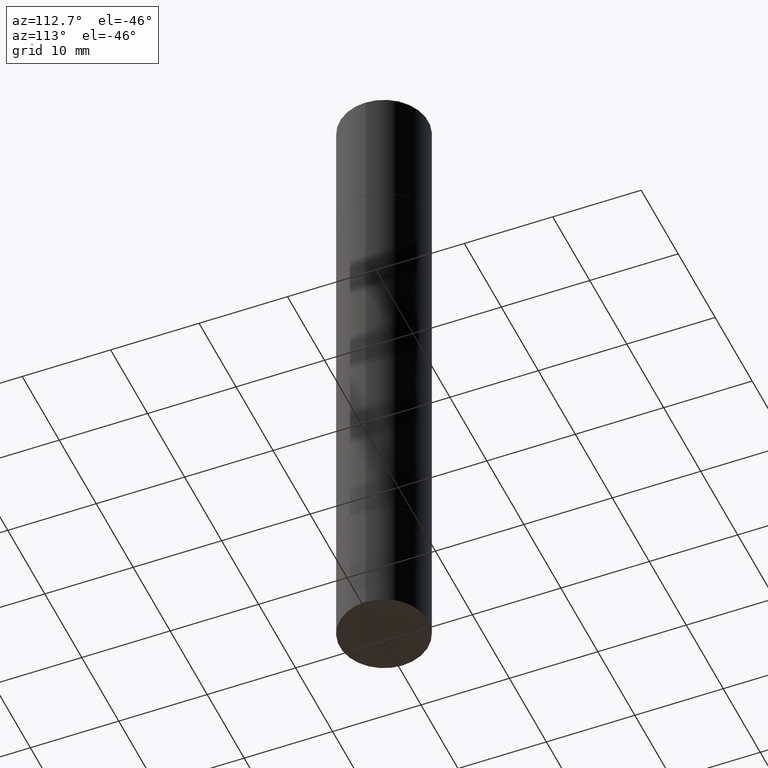
[diagram: clean part render]
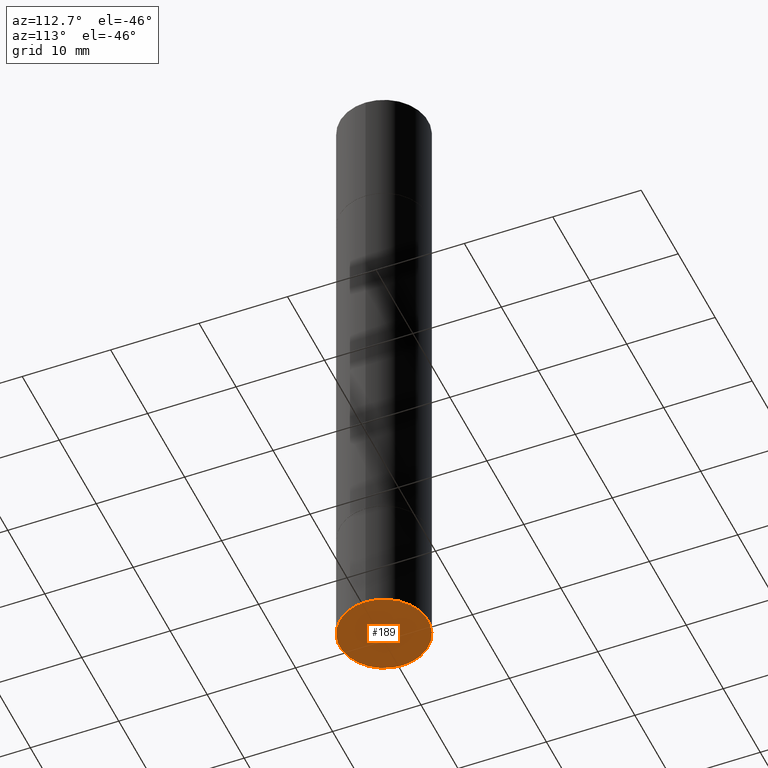
[diagram: same view with one face highlighted and labeled with its STEP entity id]
A machine part, auxiliary view. The second image highlights one B-rep face of the part: STEP entity #189.
In plain terms, the highlighted planar face has unit normal (0, -0, -1).
Its self-contained STEP definition (entity closure, byte-faithful):
#18 = PLANE ( 'NONE',  #629 ) ;
#57 = EDGE_LOOP ( 'NONE', ( #292, #427 ) ) ;
#189 = ADVANCED_FACE ( 'NONE', ( #494 ), #18, .T. ) ;
#195 = DIRECTION ( 'NONE',  ( 1.000000000000000000, -6.982962677686267499E-15, 0.000000000000000000 ) ) ;
#208 = DIRECTION ( 'NONE',  ( 1.000000000000000000, -6.982962677686267499E-15, 0.000000000000000000 ) ) ;
#215 = EDGE_CURVE ( 'NONE', #628, #492, #588, .T. ) ;
#292 = ORIENTED_EDGE ( 'NONE', *, *, #388, .F. ) ;
#306 = CARTESIAN_POINT ( 'NONE',  ( 7.220980290903470182E-29, -1.030964609733603853E-14, -2.952799999999999869 ) ) ;
#367 = CARTESIAN_POINT ( 'NONE',  ( 0.1968500000000000250, -1.168424230043858014E-14, -2.952799999999999869 ) ) ;
#388 = EDGE_CURVE ( 'NONE', #492, #628, #512, .T. ) ;
#402 = CARTESIAN_POINT ( 'NONE',  ( 7.220980290903470182E-29, -1.030964609733603853E-14, -2.952799999999999869 ) ) ;
#427 = ORIENTED_EDGE ( 'NONE', *, *, #215, .F. ) ;
#446 = CARTESIAN_POINT ( 'NONE',  ( 1.374596203102613789E-15, 0.1968499999999896999, -2.952800000000000313 ) ) ;
#492 = VERTEX_POINT ( 'NONE', #367 ) ;
#494 = FACE_OUTER_BOUND ( 'NONE', #57, .T. ) ;
#496 = DIRECTION ( 'NONE',  ( -1.000000000000000000, 6.982962677686265922E-15, -4.876176775795935793E-29 ) ) ;
#512 = CIRCLE ( 'NONE', #600, 0.1968500000000000250 ) ;
#588 = CIRCLE ( 'NONE', #619, 0.1968500000000000250 ) ;
#600 = AXIS2_PLACEMENT_3D ( 'NONE', #306, #671, #208 ) ;
#619 = AXIS2_PLACEMENT_3D ( 'NONE', #402, #666, #195 ) ;
#628 = VERTEX_POINT ( 'NONE', #645 ) ;
#629 = AXIS2_PLACEMENT_3D ( 'NONE', #446, #649, #496 ) ;
#645 = CARTESIAN_POINT ( 'NONE',  ( -0.1968500000000000250, -7.948690465007109319E-15, -2.952799999999999869 ) ) ;
#649 = DIRECTION ( 'NONE',  ( 2.438088387897960049E-29, -3.491481338843145188E-15, -1.000000000000000000 ) ) ;
#666 = DIRECTION ( 'NONE',  ( -2.445468806185136597E-29, 3.491481338843145583E-15, 1.000000000000000000 ) ) ;
#671 = DIRECTION ( 'NONE',  ( -2.445468806185136597E-29, 3.491481338843145583E-15, 1.000000000000000000 ) ) ;